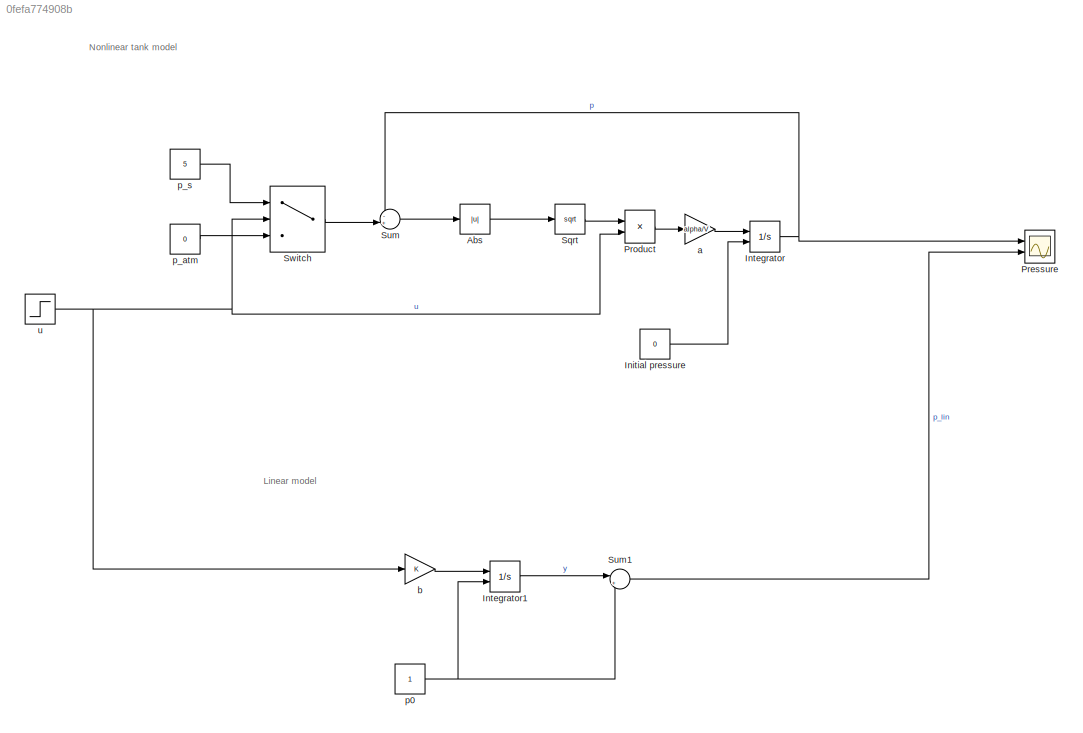
MODEL slx_0fefa774908b
KIND model
CONFIG AbsTol = auto
CONFIG EnableMultiTasking = off
CONFIG FixedStep = auto
CONFIG MaxStep = auto
CONFIG MinStep = auto
CONFIG RelTol = 1e-3
CONFIG SampleTimeConstraint = Unconstrained
CONFIG SolverName = VariableStepAuto
CONFIG StartTime = 0.0
CONFIG StopTime = 10
WORKSPACE source: MATLAB code (in-file)
WORKSPACE V = 0.4
WORKSPACE alpha = 1.5/3  (= 0.5)
WORKSPACE p_s = 6
BLOCK [Abs] Abs
  SaturateOnIntegerOverflow = off
BLOCK [Constant] Initial pressure
  OutDataTypeStr = Inherit: Inherit via back propagation
  Value = 0
BLOCK [Integrator] Integrator
  InitialCondition = 1
  InitialConditionSource = external
  LimitOutput = on
  LowerSaturationLimit = 0
  Ports = [2, 1]
BLOCK [Integrator] Integrator1
  InitialConditionSource = external
  Ports = [2, 1]
BLOCK [Scope] Pressure
  Floating = off
  NumInputPorts = 2
  Ports = [2]
  ScopeSpecificationString = Simulink.scopes.TimeScopeBlockCfg('CurrentConfiguration', extmgr.ConfigurationSet(extmgr.Configuration('Core','General UI',true),extmgr.Configuration('Core','Source UI',true),extmgr.Configuration('Sources','WiredSimulink',true),extmgr.Configuration('Visuals','Time Domain',true,'SerializedDisplays',{struct('MinYLimReal','-2.125','MaxYLimReal','19.125','YLabelReal','','MinYLimMag','0.00000','MaxYLim...<+1347ch>
BLOCK [Product] Product
  Ports = [2, 1]
BLOCK [Sqrt] Sqrt
BLOCK [Sum] Sum
  Inputs = -+|
  Ports = [2, 1]
BLOCK [Sum] Sum1
  Inputs = |++
  Ports = [2, 1]
BLOCK [Switch] Switch
  Criteria = u2 > Threshold
  InputSameDT = off
  SaturateOnIntegerOverflow = off
BLOCK [Gain] a
  Gain = alpha/V
BLOCK [Gain] b
BLOCK [Constant] p0
BLOCK [Constant] p_atm
  Value = 0
BLOCK [Constant] p_s
  Value = 5
BLOCK [Step] u
  After = -3
  Before = 3
  SampleTime = 0
  Time = 5
ANNOTATION (root): Linear model
ANNOTATION (root): Nonlinear tank model
LINE Abs:1 -> Sqrt:1
LINE Initial pressure:1 -> Integrator:2
LINE Integrator1:1 -> Sum1:1
NET Integrator:1 -> Pressure:1, Sum:1
LINE Product:1 -> a:1
LINE Sqrt:1 -> Product:1
LINE Sum1:1 -> Pressure:2
LINE Sum:1 -> Abs:1
LINE Switch:1 -> Sum:2
LINE a:1 -> Integrator:1
LINE b:1 -> Integrator1:1
NET p0:1 -> Integrator1:2, Sum1:2
LINE p_atm:1 -> Switch:3
LINE p_s:1 -> Switch:1
NET u:1 -> Product:2, Switch:2, b:1
note: NET lines group one-source signal fan-out (src -> all destinations, sorted); 1:1 wires keep LINE
